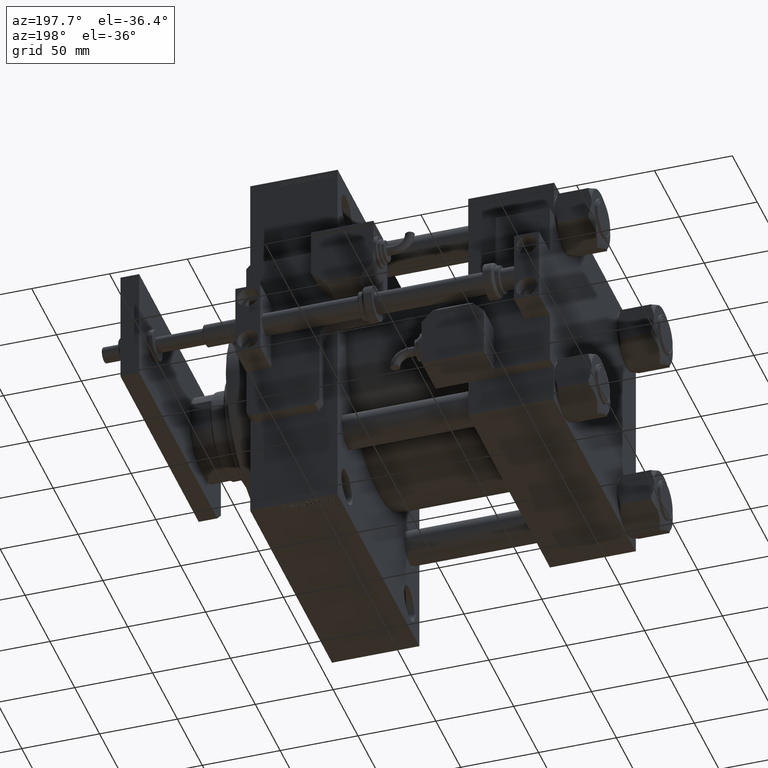
[diagram: clean part render]
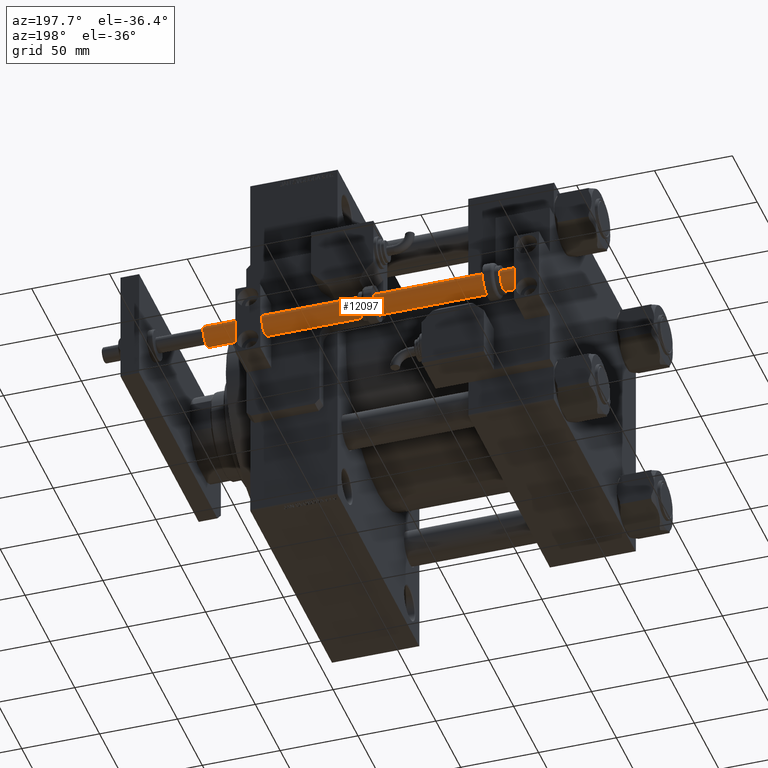
[diagram: same view with one face highlighted and labeled with its STEP entity id]
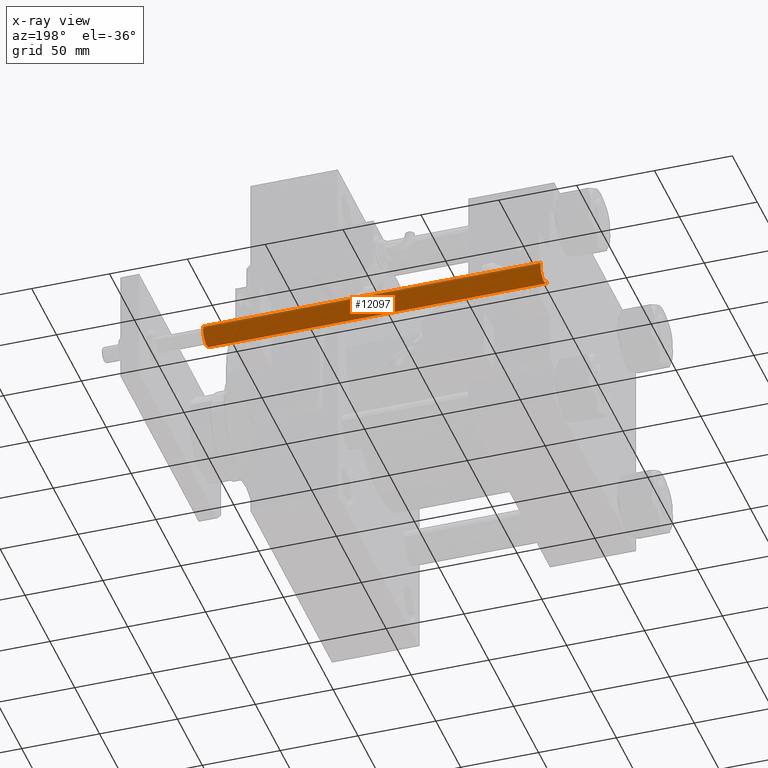
[diagram: x-ray of the same camera — body ghosted, the highlighted face saturated]
A machine part, auxiliary view. The second image highlights one B-rep face of the part: STEP entity #12097.
The next image is the same camera in x-ray: the body ghosted, the highlighted face saturated — about 0% of this face is hidden behind the body in this view.
In plain terms, the highlighted cylindrical surface (edge-blend (fillet) strip) has radius 7 mm, axis along (1, -0, 0).
Its self-contained STEP definition (entity closure, byte-faithful):
#3187 = DIRECTION ( 'NONE',  ( -0.000000000000000000, -0.000000000000000000, -1.000000000000000000 ) ) ;
#4075 = DIRECTION ( 'NONE',  ( 1.000000000000000000, 0.000000000000000000, 0.000000000000000000 ) ) ;
#4339 = DIRECTION ( 'NONE',  ( -1.000000000000000000, 0.000000000000000000, 0.000000000000000000 ) ) ;
#5337 = EDGE_CURVE ( 'NONE', #24947, #31766, #24523, .T. ) ;
#7607 = CARTESIAN_POINT ( 'NONE',  ( 0.000000000000000000, 0.000000000000000000, 0.2999999999999392042 ) ) ;
#9844 = CIRCLE ( 'NONE', #46949, 7.000000000000000000 ) ;
#11247 = ORIENTED_EDGE ( 'NONE', *, *, #39045, .T. ) ;
#12097 = ADVANCED_FACE ( 'NONE', ( #37800 ), #12156, .T. ) ;
#12156 = CYLINDRICAL_SURFACE ( 'NONE', #31081, 7.000000000000000000 ) ;
#15164 = DIRECTION ( 'NONE',  ( -0.000000000000000000, -0.000000000000000000, 1.000000000000000000 ) ) ;
#16207 = CARTESIAN_POINT ( 'NONE',  ( -7.000000000000000000, 0.000000000000000000, 217.0000000000000000 ) ) ;
#18855 = VERTEX_POINT ( 'NONE', #43188 ) ;
#19219 = DIRECTION ( 'NONE',  ( 1.000000000000000000, 0.000000000000000000, 0.000000000000000000 ) ) ;
#21506 = VERTEX_POINT ( 'NONE', #41470 ) ;
#24523 = LINE ( 'NONE', #40190, #49818 ) ;
#24590 = DIRECTION ( 'NONE',  ( 0.000000000000000000, 0.000000000000000000, 1.000000000000000000 ) ) ;
#24947 = VERTEX_POINT ( 'NONE', #16207 ) ;
#25542 = CIRCLE ( 'NONE', #48002, 7.000000000000000000 ) ;
#25777 = EDGE_LOOP ( 'NONE', ( #53317, #11247, #32664, #29665 ) ) ;
#28298 = DIRECTION ( 'NONE',  ( -0.000000000000000000, -0.000000000000000000, -1.000000000000000000 ) ) ;
#29024 = EDGE_CURVE ( 'NONE', #18855, #31766, #25542, .T. ) ;
#29665 = ORIENTED_EDGE ( 'NONE', *, *, #5337, .F. ) ;
#31081 = AXIS2_PLACEMENT_3D ( 'NONE', #33479, #41068, #4339 ) ;
#31400 = CARTESIAN_POINT ( 'NONE',  ( -7.000000000000000000, 0.000000000000000000, 0.2999999999999392042 ) ) ;
#31766 = VERTEX_POINT ( 'NONE', #31400 ) ;
#32329 = LINE ( 'NONE', #40713, #44949 ) ;
#32664 = ORIENTED_EDGE ( 'NONE', *, *, #29024, .T. ) ;
#33479 = CARTESIAN_POINT ( 'NONE',  ( 0.000000000000000000, 0.000000000000000000, 217.0000000000000000 ) ) ;
#37800 = FACE_OUTER_BOUND ( 'NONE', #25777, .T. ) ;
#39045 = EDGE_CURVE ( 'NONE', #21506, #18855, #32329, .T. ) ;
#40190 = CARTESIAN_POINT ( 'NONE',  ( -7.000000000000000000, 0.000000000000000000, 217.0000000000000000 ) ) ;
#40713 = CARTESIAN_POINT ( 'NONE',  ( 7.000000000000000000, 8.572527594031473190E-16, 217.0000000000000000 ) ) ;
#41068 = DIRECTION ( 'NONE',  ( -0.000000000000000000, -0.000000000000000000, -1.000000000000000000 ) ) ;
#41470 = CARTESIAN_POINT ( 'NONE',  ( 7.000000000000000000, 8.572527594031473190E-16, 217.0000000000000000 ) ) ;
#43188 = CARTESIAN_POINT ( 'NONE',  ( 7.000000000000000000, 8.572527594031473190E-16, 0.2999999999999392042 ) ) ;
#44588 = CARTESIAN_POINT ( 'NONE',  ( 0.000000000000000000, 0.000000000000000000, 217.0000000000000000 ) ) ;
#44949 = VECTOR ( 'NONE', #3187, 1000.000000000000000 ) ;
#46949 = AXIS2_PLACEMENT_3D ( 'NONE', #44588, #24590, #4075 ) ;
#48002 = AXIS2_PLACEMENT_3D ( 'NONE', #7607, #15164, #19219 ) ;
#48749 = EDGE_CURVE ( 'NONE', #21506, #24947, #9844, .T. ) ;
#49818 = VECTOR ( 'NONE', #28298, 1000.000000000000000 ) ;
#53317 = ORIENTED_EDGE ( 'NONE', *, *, #48749, .F. ) ;